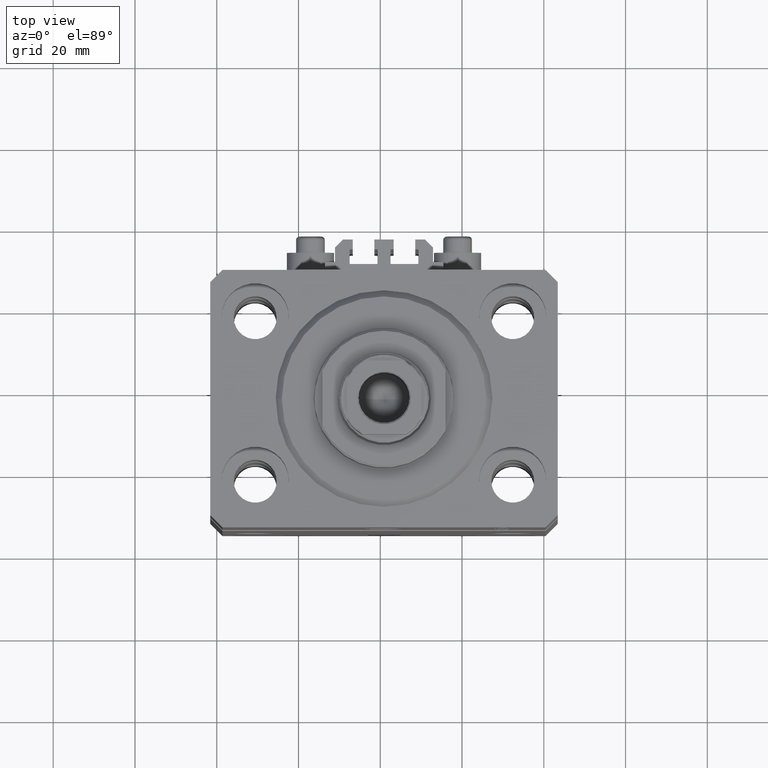
[diagram: clean part render]
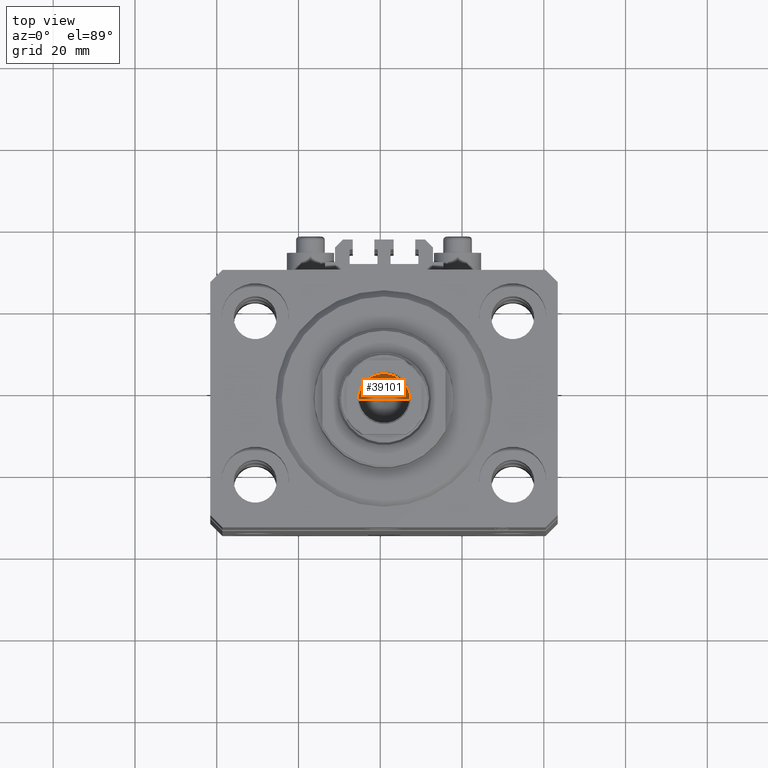
[diagram: same view with one face highlighted and labeled with its STEP entity id]
A machine part, top view. The second image highlights one B-rep face of the part: STEP entity #39101.
In plain terms, the highlighted conical surface has half-angle 59 deg.
Its self-contained STEP definition (entity closure, byte-faithful):
#1964 = ORIENTED_EDGE ( 'NONE', *, *, #37868, .F. ) ;
#3097 = AXIS2_PLACEMENT_3D ( 'NONE', #16767, #34540, #20183 ) ;
#6604 = DIRECTION ( 'NONE',  ( -0.8571673007021115565, 1.049727191138617710E-16, 0.5150380749100554878 ) ) ;
#9268 = CARTESIAN_POINT ( 'NONE',  ( 6.249999999999993783, 0.000000000000000000, 103.5999999999999943 ) ) ;
#12408 = FACE_OUTER_BOUND ( 'NONE', #26344, .T. ) ;
#13938 = VECTOR ( 'NONE', #6604, 1000.000000000000000 ) ;
#14568 = VERTEX_POINT ( 'NONE', #33652 ) ;
#14807 = ORIENTED_EDGE ( 'NONE', *, *, #38088, .T. ) ;
#16767 = CARTESIAN_POINT ( 'NONE',  ( 0.000000000000000000, 0.000000000000000000, 103.5999999999999943 ) ) ;
#19734 = VECTOR ( 'NONE', #29080, 1000.000000000000000 ) ;
#20183 = DIRECTION ( 'NONE',  ( 1.000000000000000000, 0.000000000000000000, 0.000000000000000000 ) ) ;
#21995 = EDGE_CURVE ( 'NONE', #30195, #33242, #44166, .T. ) ;
#25595 = AXIS2_PLACEMENT_3D ( 'NONE', #29432, #44284, #25784 ) ;
#25784 = DIRECTION ( 'NONE',  ( 1.000000000000000000, 0.000000000000000000, 0.000000000000000000 ) ) ;
#26344 = EDGE_LOOP ( 'NONE', ( #1964, #47157, #14807 ) ) ;
#28955 = LINE ( 'NONE', #32129, #13938 ) ;
#29080 = DIRECTION ( 'NONE',  ( 0.8571673007021115565, 0.000000000000000000, 0.5150380749100554878 ) ) ;
#29432 = CARTESIAN_POINT ( 'NONE',  ( 0.000000000000000000, 0.000000000000000000, 103.5999999999999943 ) ) ;
#30195 = VERTEX_POINT ( 'NONE', #48001 ) ;
#32129 = CARTESIAN_POINT ( 'NONE',  ( -6.249999999999993783, 7.654042494670949718E-16, 103.5999999999999943 ) ) ;
#32610 = CONICAL_SURFACE ( 'NONE', #3097, 6.249999999999993783, 1.029744258676652979 ) ;
#33242 = VERTEX_POINT ( 'NONE', #9268 ) ;
#33652 = CARTESIAN_POINT ( 'NONE',  ( -6.249999999999993783, 7.654042494670949718E-16, 103.5999999999999943 ) ) ;
#34540 = DIRECTION ( 'NONE',  ( -0.000000000000000000, -0.000000000000000000, 1.000000000000000000 ) ) ;
#37360 = CARTESIAN_POINT ( 'NONE',  ( 6.249999999999993783, 0.000000000000000000, 103.5999999999999943 ) ) ;
#37868 = EDGE_CURVE ( 'NONE', #30195, #14568, #28955, .T. ) ;
#38088 = EDGE_CURVE ( 'NONE', #33242, #14568, #46587, .T. ) ;
#39101 = ADVANCED_FACE ( 'NONE', ( #12408 ), #32610, .F. ) ;
#44166 = LINE ( 'NONE', #37360, #19734 ) ;
#44284 = DIRECTION ( 'NONE',  ( -0.000000000000000000, -0.000000000000000000, 1.000000000000000000 ) ) ;
#46587 = CIRCLE ( 'NONE', #25595, 6.249999999999993783 ) ;
#47157 = ORIENTED_EDGE ( 'NONE', *, *, #21995, .T. ) ;
#48001 = CARTESIAN_POINT ( 'NONE',  ( -7.434177670704979810E-15, 0.000000000000000000, 99.84462113107774428 ) ) ;